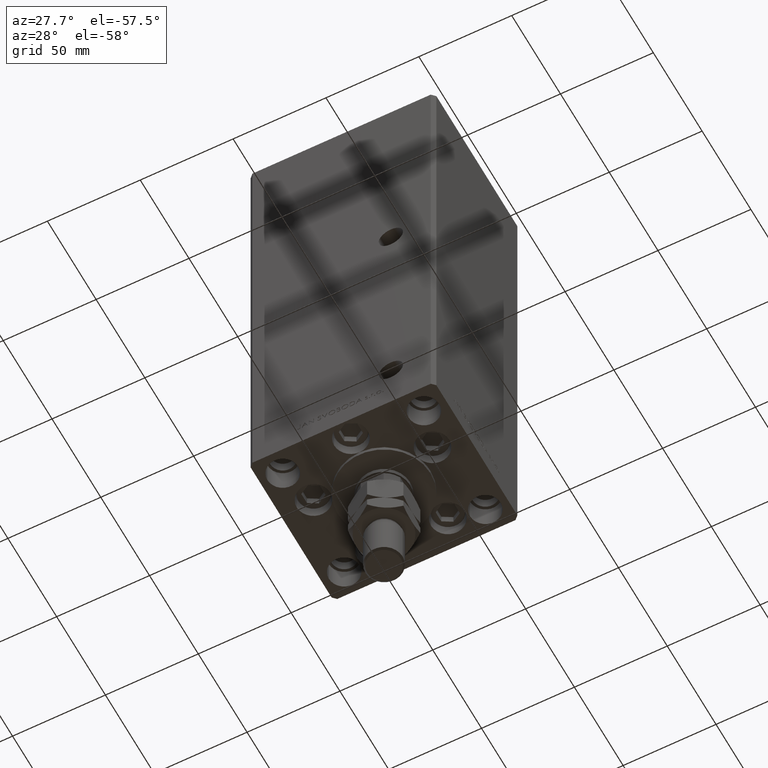
[diagram: clean part render]
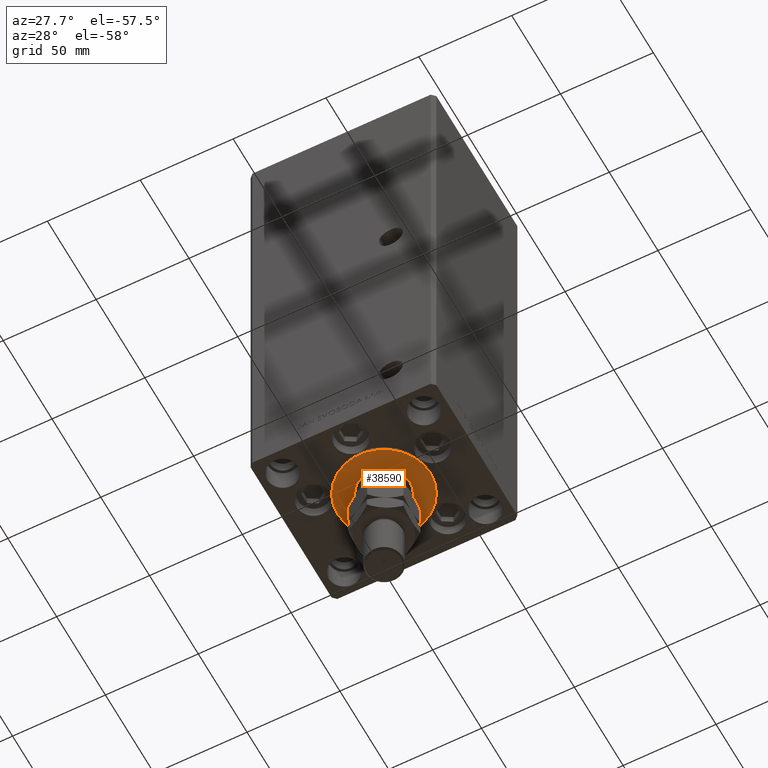
[diagram: same view with one face highlighted and labeled with its STEP entity id]
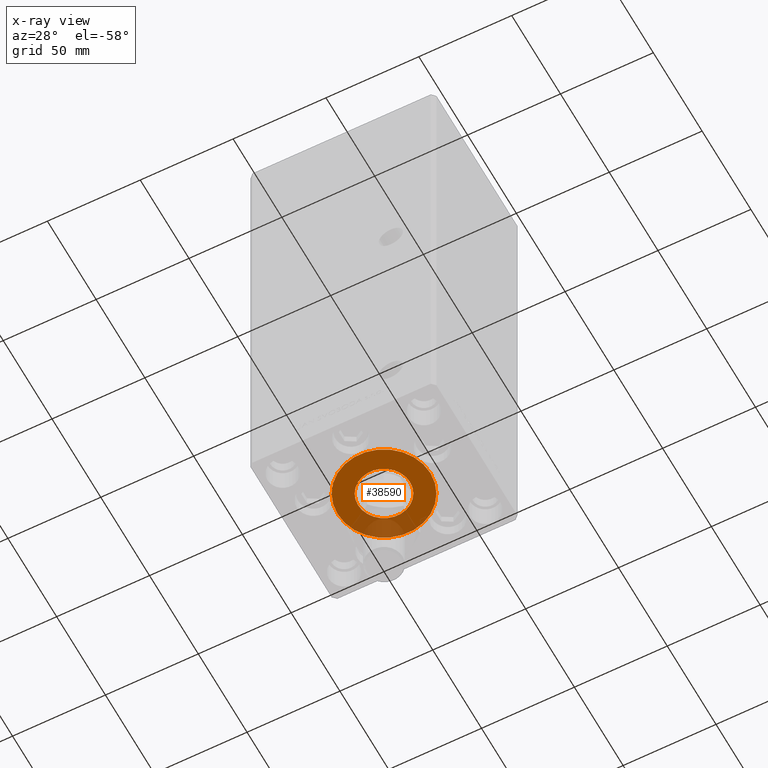
[diagram: x-ray of the same camera — body ghosted, the highlighted face saturated]
A machine part, auxiliary view. The second image highlights one B-rep face of the part: STEP entity #38590.
The next image is the same camera in x-ray: the body ghosted, the highlighted face saturated — about 23% of this face is hidden behind the body in this view.
In plain terms, the highlighted planar face has unit normal (0, 0, -1).
Its self-contained STEP definition (entity closure, byte-faithful):
#1825 = ORIENTED_EDGE ( 'NONE', *, *, #47369, .F. ) ;
#2410 = EDGE_CURVE ( 'NONE', #4133, #33145, #20867, .T. ) ;
#2737 = AXIS2_PLACEMENT_3D ( 'NONE', #15489, #33164, #20626 ) ;
#4087 = VERTEX_POINT ( 'NONE', #35261 ) ;
#4133 = VERTEX_POINT ( 'NONE', #15137 ) ;
#4337 = CARTESIAN_POINT ( 'NONE',  ( 0.000000000000000000, -6.938893903907228378E-15, 2.000000000000000000 ) ) ;
#6479 = AXIS2_PLACEMENT_3D ( 'NONE', #26618, #10147, #50141 ) ;
#7335 = FACE_OUTER_BOUND ( 'NONE', #33578, .T. ) ;
#10147 = DIRECTION ( 'NONE',  ( 0.000000000000000000, 0.000000000000000000, 1.000000000000000000 ) ) ;
#12273 = CIRCLE ( 'NONE', #6479, 25.00000000000000000 ) ;
#12499 = AXIS2_PLACEMENT_3D ( 'NONE', #18218, #26570, #49841 ) ;
#13106 = ORIENTED_EDGE ( 'NONE', *, *, #37946, .T. ) ;
#14917 = DIRECTION ( 'NONE',  ( 0.000000000000000000, 0.000000000000000000, 1.000000000000000000 ) ) ;
#15137 = CARTESIAN_POINT ( 'NONE',  ( -14.00000000000000000, -5.224388385100933937E-15, 2.000000000000000000 ) ) ;
#15489 = CARTESIAN_POINT ( 'NONE',  ( 0.000000000000000000, -6.938893903907228378E-15, 2.000000000000000000 ) ) ;
#17135 = DIRECTION ( 'NONE',  ( 1.000000000000000000, 0.000000000000000000, 0.000000000000000000 ) ) ;
#18218 = CARTESIAN_POINT ( 'NONE',  ( 0.000000000000000000, -6.938893903907228378E-15, 2.000000000000000000 ) ) ;
#18589 = CARTESIAN_POINT ( 'NONE',  ( 0.000000000000000000, -6.938893903907228378E-15, 2.000000000000000000 ) ) ;
#20626 = DIRECTION ( 'NONE',  ( 1.000000000000000000, 0.000000000000000000, 0.000000000000000000 ) ) ;
#20867 = CIRCLE ( 'NONE', #12499, 14.00000000000000000 ) ;
#26570 = DIRECTION ( 'NONE',  ( 0.000000000000000000, 0.000000000000000000, 1.000000000000000000 ) ) ;
#26618 = CARTESIAN_POINT ( 'NONE',  ( 0.000000000000000000, -6.938893903907228378E-15, 2.000000000000000000 ) ) ;
#28561 = CARTESIAN_POINT ( 'NONE',  ( 14.00000000000000000, -6.938893903907228378E-15, 2.000000000000000000 ) ) ;
#28629 = CARTESIAN_POINT ( 'NONE',  ( -25.00000000000000000, -6.938893903907228378E-15, 2.000000000000000000 ) ) ;
#30684 = AXIS2_PLACEMENT_3D ( 'NONE', #18589, #14917, #34540 ) ;
#32043 = DIRECTION ( 'NONE',  ( 0.000000000000000000, 0.000000000000000000, 1.000000000000000000 ) ) ;
#33145 = VERTEX_POINT ( 'NONE', #28561 ) ;
#33164 = DIRECTION ( 'NONE',  ( 0.000000000000000000, 0.000000000000000000, 1.000000000000000000 ) ) ;
#33578 = EDGE_LOOP ( 'NONE', ( #36689, #13106 ) ) ;
#34540 = DIRECTION ( 'NONE',  ( 1.000000000000000000, 0.000000000000000000, -0.000000000000000000 ) ) ;
#35261 = CARTESIAN_POINT ( 'NONE',  ( 25.00000000000000000, -3.877276906038844941E-15, 2.000000000000000000 ) ) ;
#36689 = ORIENTED_EDGE ( 'NONE', *, *, #51577, .T. ) ;
#37548 = AXIS2_PLACEMENT_3D ( 'NONE', #4337, #32043, #17135 ) ;
#37946 = EDGE_CURVE ( 'NONE', #4087, #47373, #12273, .T. ) ;
#38590 = ADVANCED_FACE ( 'NONE', ( #42639, #7335 ), #46316, .T. ) ;
#42639 = FACE_BOUND ( 'NONE', #51135, .T. ) ;
#46216 = ORIENTED_EDGE ( 'NONE', *, *, #2410, .F. ) ;
#46316 = PLANE ( 'NONE',  #30684 ) ;
#47369 = EDGE_CURVE ( 'NONE', #33145, #4133, #47582, .T. ) ;
#47373 = VERTEX_POINT ( 'NONE', #28629 ) ;
#47582 = CIRCLE ( 'NONE', #37548, 14.00000000000000000 ) ;
#47796 = CIRCLE ( 'NONE', #2737, 25.00000000000000000 ) ;
#49841 = DIRECTION ( 'NONE',  ( 1.000000000000000000, 0.000000000000000000, 0.000000000000000000 ) ) ;
#50141 = DIRECTION ( 'NONE',  ( 1.000000000000000000, 0.000000000000000000, 0.000000000000000000 ) ) ;
#51135 = EDGE_LOOP ( 'NONE', ( #1825, #46216 ) ) ;
#51577 = EDGE_CURVE ( 'NONE', #47373, #4087, #47796, .T. ) ;